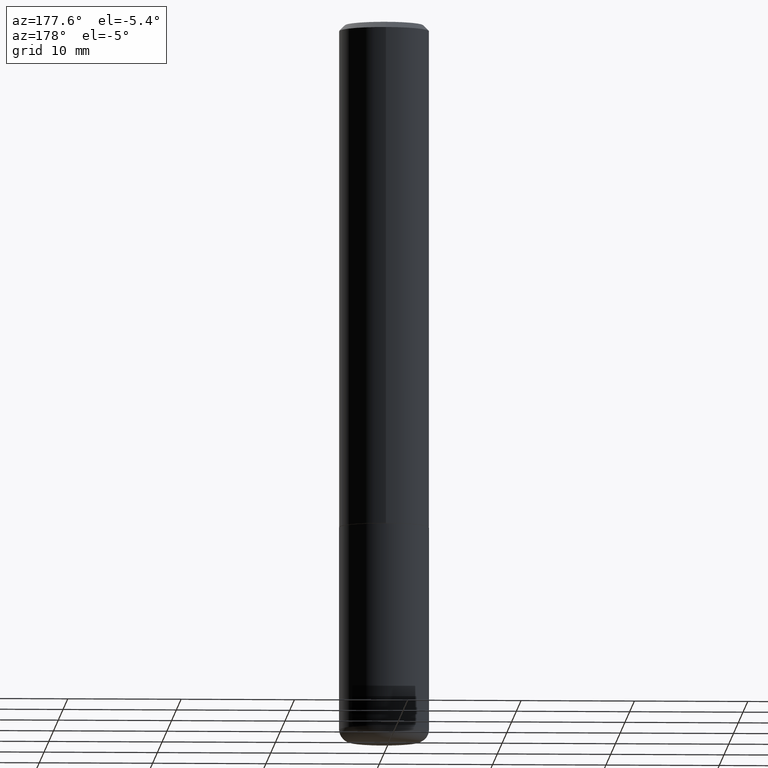
[diagram: clean part render]
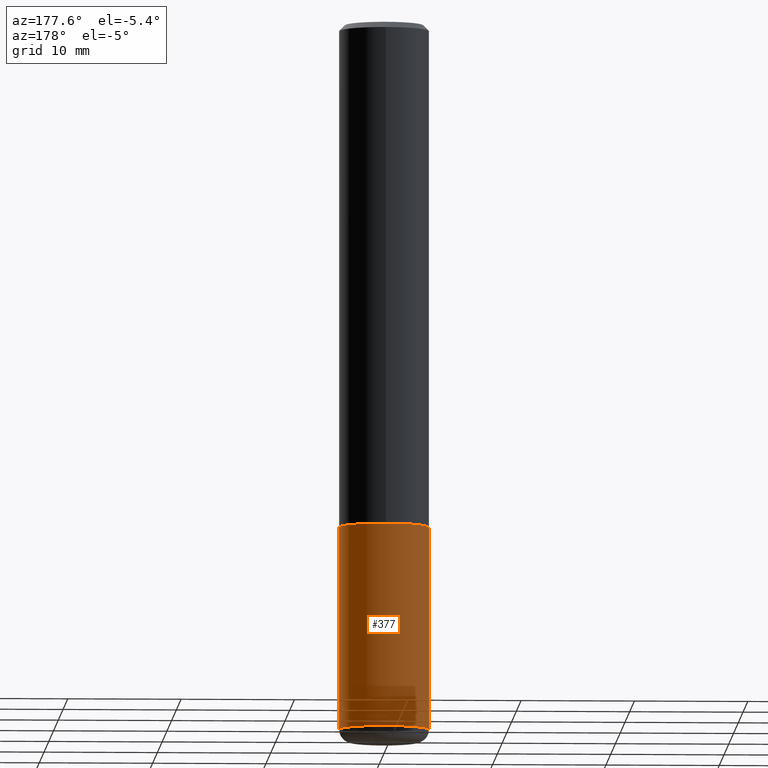
[diagram: same view with one face highlighted and labeled with its STEP entity id]
A machine part, auxiliary view. The second image highlights one B-rep face of the part: STEP entity #377.
In plain terms, the highlighted cylindrical surface (partial cylindrical patch) has radius 3.9688 mm, axis along (-0, 0, 1).
Its self-contained STEP definition (entity closure, byte-faithful):
#13 = AXIS2_PLACEMENT_3D ( 'NONE', #143, #368, #205 ) ;
#24 = CARTESIAN_POINT ( 'NONE',  ( -0.1562500000000000000, -6.230616490292557845E-15, -1.750000000000000222 ) ) ;
#29 = CARTESIAN_POINT ( 'NONE',  ( 0.1562500000000000000, -7.201180261363985422E-15, -1.750000000000000222 ) ) ;
#31 = CARTESIAN_POINT ( 'NONE',  ( -0.1562500000000000000, 1.110223024625156540E-15, -7.685836078523291160E-30 ) ) ;
#56 = CARTESIAN_POINT ( 'NONE',  ( -0.1562500000000000000, -7.461363662234766770E-15, -2.455000000000000071 ) ) ;
#68 = VECTOR ( 'NONE', #82, 39.37007874015748143 ) ;
#82 = DIRECTION ( 'NONE',  ( -2.445468806185136877E-29, 3.491481338843145188E-15, 1.000000000000000000 ) ) ;
#85 = DIRECTION ( 'NONE',  ( 1.000000000000000000, -6.982962677686266711E-15, 4.876176775795936353E-29 ) ) ;
#111 = AXIS2_PLACEMENT_3D ( 'NONE', #121, #124, #85 ) ;
#121 = CARTESIAN_POINT ( 'NONE',  ( 0.000000000000000000, 0.000000000000000000, 0.000000000000000000 ) ) ;
#124 = DIRECTION ( 'NONE',  ( -2.445468806185136597E-29, 3.491481338843145583E-15, 1.000000000000000000 ) ) ;
#143 = CARTESIAN_POINT ( 'NONE',  ( 4.279570410823989044E-29, -6.110092342975505460E-15, -1.750000000000000222 ) ) ;
#145 = ORIENTED_EDGE ( 'NONE', *, *, #364, .F. ) ;
#148 = AXIS2_PLACEMENT_3D ( 'NONE', #414, #386, #227 ) ;
#156 = CYLINDRICAL_SURFACE ( 'NONE', #111, 0.1562500000000000000 ) ;
#173 = DIRECTION ( 'NONE',  ( -2.445468806185136877E-29, 3.491481338843145188E-15, 1.000000000000000000 ) ) ;
#184 = EDGE_LOOP ( 'NONE', ( #250, #342, #339, #145 ) ) ;
#205 = DIRECTION ( 'NONE',  ( 1.000000000000000000, -6.982962677686269077E-15, 0.000000000000000000 ) ) ;
#214 = VERTEX_POINT ( 'NONE', #24 ) ;
#227 = DIRECTION ( 'NONE',  ( 1.000000000000000000, -6.982962677686269077E-15, 0.000000000000000000 ) ) ;
#250 = ORIENTED_EDGE ( 'NONE', *, *, #380, .T. ) ;
#265 = CIRCLE ( 'NONE', #13, 0.1562500000000000000 ) ;
#283 = CARTESIAN_POINT ( 'NONE',  ( 0.1562500000000000000, -1.091087918388479174E-15, 7.619026212181150377E-30 ) ) ;
#285 = EDGE_CURVE ( 'NONE', #345, #214, #265, .T. ) ;
#320 = FACE_OUTER_BOUND ( 'NONE', #184, .T. ) ;
#335 = CIRCLE ( 'NONE', #148, 0.1562500000000000000 ) ;
#336 = LINE ( 'NONE', #31, #353 ) ;
#339 = ORIENTED_EDGE ( 'NONE', *, *, #285, .F. ) ;
#342 = ORIENTED_EDGE ( 'NONE', *, *, #413, .T. ) ;
#345 = VERTEX_POINT ( 'NONE', #29 ) ;
#353 = VECTOR ( 'NONE', #173, 39.37007874015748143 ) ;
#354 = CARTESIAN_POINT ( 'NONE',  ( 0.1562500000000000000, -9.662674605248401695E-15, -2.455000000000000071 ) ) ;
#364 = EDGE_CURVE ( 'NONE', #402, #345, #381, .T. ) ;
#368 = DIRECTION ( 'NONE',  ( -2.445468806185136597E-29, 3.491481338843145583E-15, 1.000000000000000000 ) ) ;
#377 = ADVANCED_FACE ( 'NONE', ( #320 ), #156, .T. ) ;
#380 = EDGE_CURVE ( 'NONE', #402, #403, #335, .T. ) ;
#381 = LINE ( 'NONE', #283, #68 ) ;
#386 = DIRECTION ( 'NONE',  ( -2.445468806185136597E-29, 3.491481338843145583E-15, 1.000000000000000000 ) ) ;
#402 = VERTEX_POINT ( 'NONE', #354 ) ;
#403 = VERTEX_POINT ( 'NONE', #56 ) ;
#413 = EDGE_CURVE ( 'NONE', #403, #214, #336, .T. ) ;
#414 = CARTESIAN_POINT ( 'NONE',  ( 6.003625919184510659E-29, -8.571586686859923311E-15, -2.455000000000000071 ) ) ;